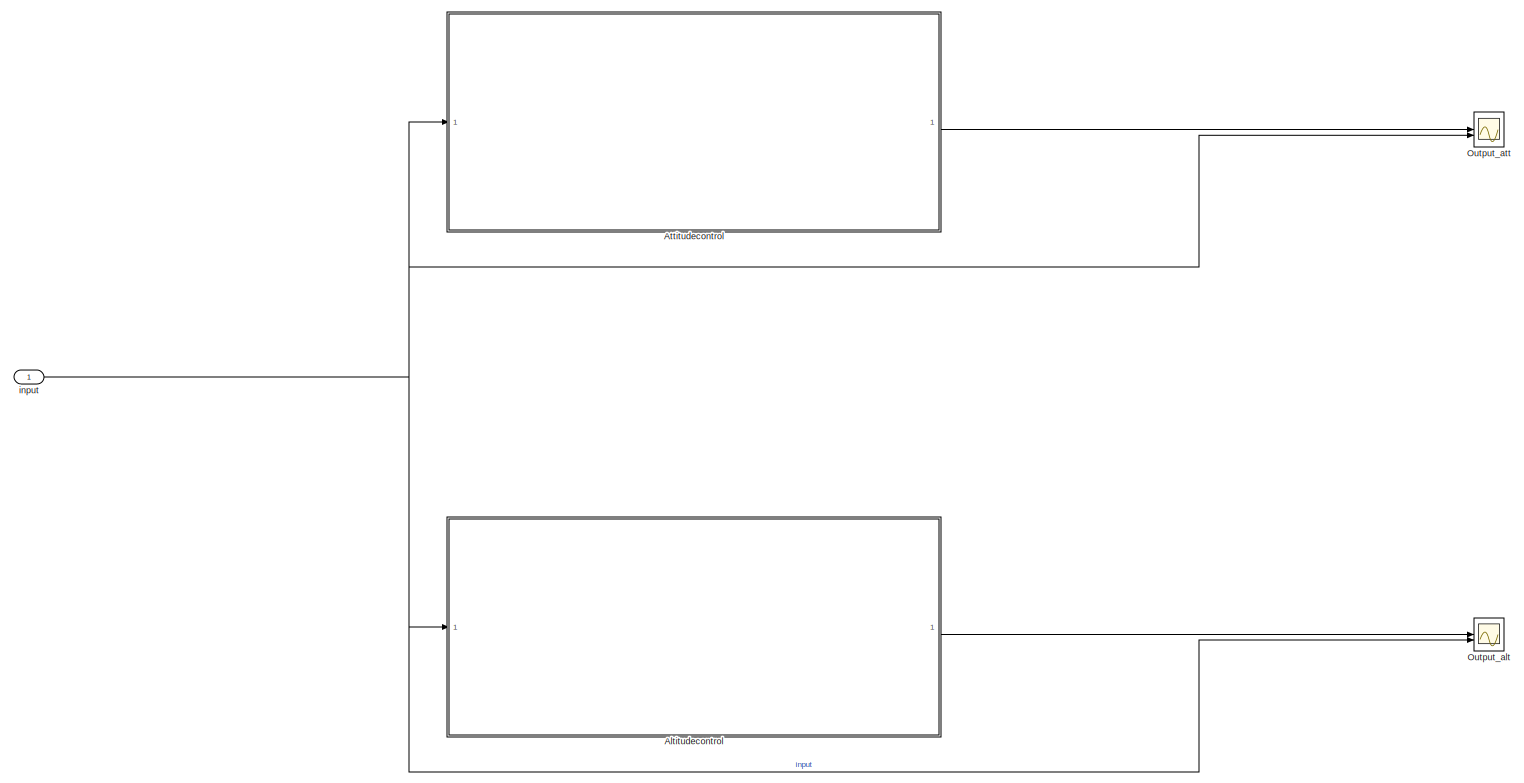
[diagram: root canvas - part 1/1, most of the canvas]
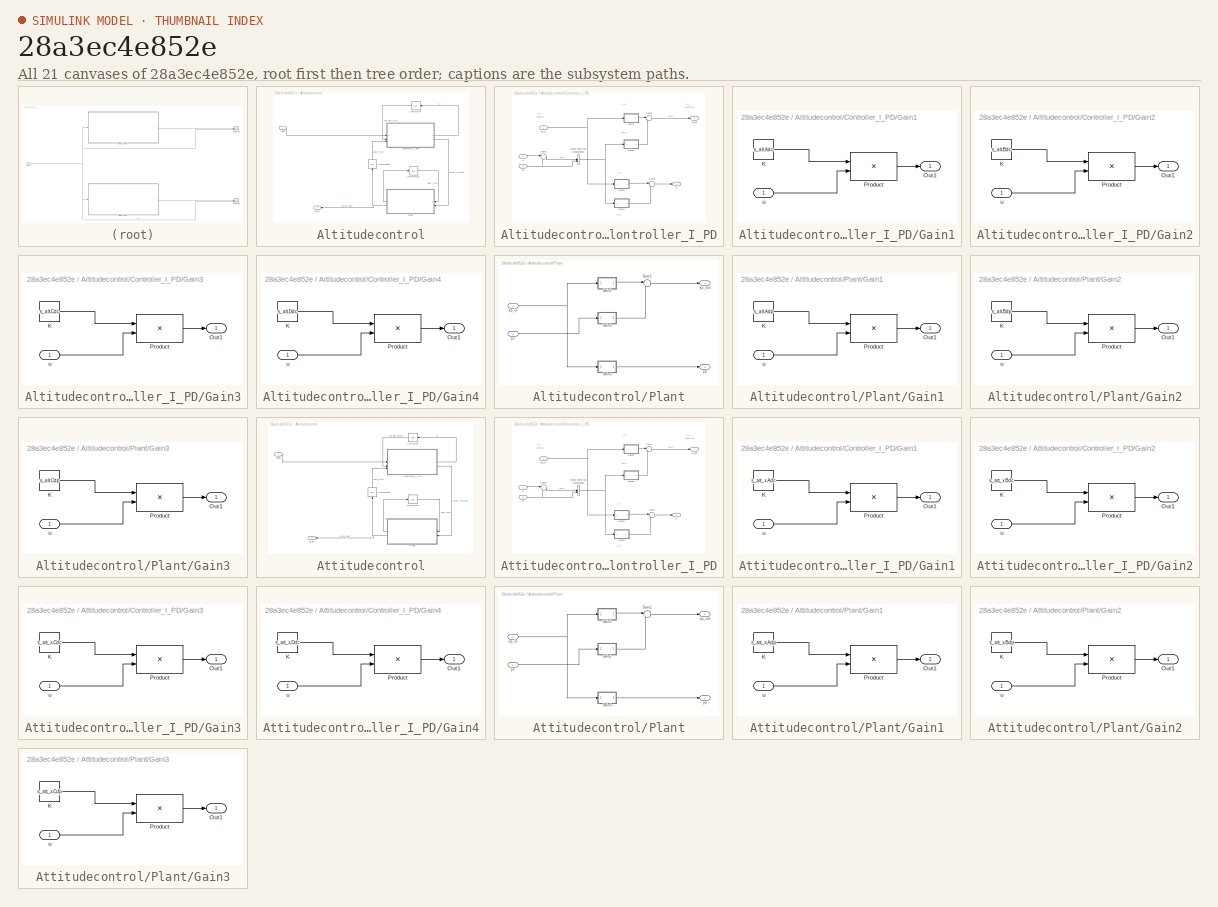
[diagram: thumbnail index - all 21 canvases of the model, root first then tree order]
MODEL slx_28a3ec4e852e
KIND model
CONFIG AbsTol = auto
CONFIG EnableMultiTasking = off
CONFIG FixedStep = 0.010000
CONFIG MaxStep = auto
CONFIG MinStep = auto
CONFIG RelTol = 1e-3
CONFIG SampleTimeConstraint = Unconstrained
CONFIG SolverName = FixedStepDiscrete
CONFIG StartTime = 0.0
CONFIG StopTime = 10.0
WORKSPACE source: mxarray member
WORKSPACE already_pp = 1
BLOCK [SubSystem] Altitudecontrol
  TreatAsAtomicUnit = on
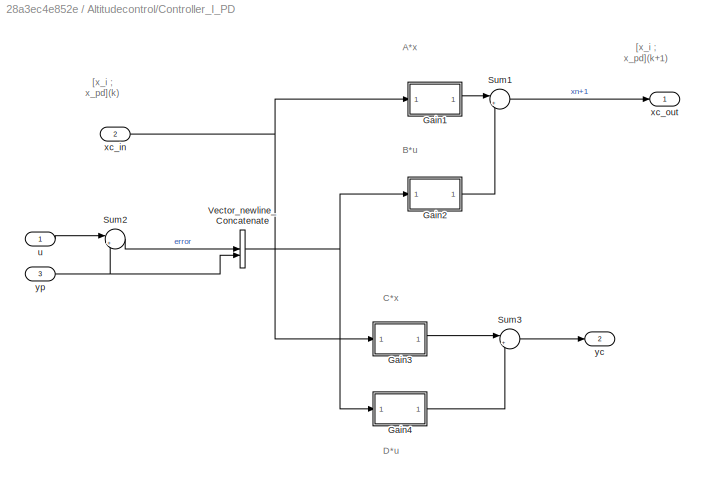
BLOCK [SubSystem] Altitudecontrol/Controller_I_PD
  TreatAsAtomicUnit = on
BLOCK [SubSystem] Altitudecontrol/Controller_I_PD/Gain1
  TreatAsAtomicUnit = on
BLOCK [Constant] Altitudecontrol/Controller_I_PD/Gain1/K
  Value = s_alt.Adc
  VectorParams1D = off
BLOCK [Outport] Altitudecontrol/Controller_I_PD/Gain1/Out1
  VectorParamsAs1DForOutWhenUnconnected = off
BLOCK [Product] Altitudecontrol/Controller_I_PD/Gain1/Product
  Multiplication = Matrix(*)
BLOCK [Inport] Altitudecontrol/Controller_I_PD/Gain1/u
  OutDataTypeStr = double
BLOCK [SubSystem] Altitudecontrol/Controller_I_PD/Gain2
  TreatAsAtomicUnit = on
BLOCK [Constant] Altitudecontrol/Controller_I_PD/Gain2/K
  Value = s_alt.Bdc
  VectorParams1D = off
BLOCK [Outport] Altitudecontrol/Controller_I_PD/Gain2/Out1
  VectorParamsAs1DForOutWhenUnconnected = off
BLOCK [Product] Altitudecontrol/Controller_I_PD/Gain2/Product
  Multiplication = Matrix(*)
BLOCK [Inport] Altitudecontrol/Controller_I_PD/Gain2/u
  OutDataTypeStr = double
BLOCK [SubSystem] Altitudecontrol/Controller_I_PD/Gain3
  TreatAsAtomicUnit = on
BLOCK [Constant] Altitudecontrol/Controller_I_PD/Gain3/K
  Value = s_alt.Cdc
  VectorParams1D = off
BLOCK [Outport] Altitudecontrol/Controller_I_PD/Gain3/Out1
  VectorParamsAs1DForOutWhenUnconnected = off
BLOCK [Product] Altitudecontrol/Controller_I_PD/Gain3/Product
  Multiplication = Matrix(*)
BLOCK [Inport] Altitudecontrol/Controller_I_PD/Gain3/u
  OutDataTypeStr = double
BLOCK [SubSystem] Altitudecontrol/Controller_I_PD/Gain4
  TreatAsAtomicUnit = on
BLOCK [Constant] Altitudecontrol/Controller_I_PD/Gain4/K
  Value = s_alt.Ddc
  VectorParams1D = off
BLOCK [Outport] Altitudecontrol/Controller_I_PD/Gain4/Out1
  VectorParamsAs1DForOutWhenUnconnected = off
BLOCK [Product] Altitudecontrol/Controller_I_PD/Gain4/Product
  Multiplication = Matrix(*)
BLOCK [Inport] Altitudecontrol/Controller_I_PD/Gain4/u
  OutDataTypeStr = double
BLOCK [Sum] Altitudecontrol/Controller_I_PD/Sum1
  Inputs = |++
BLOCK [Sum] Altitudecontrol/Controller_I_PD/Sum2
  Inputs = |+-
BLOCK [Sum] Altitudecontrol/Controller_I_PD/Sum3
  Inputs = |++
BLOCK [Concatenate] Altitudecontrol/Controller_I_PD/Vector_newline_Concatenate
BLOCK [Inport] Altitudecontrol/Controller_I_PD/u
BLOCK [Inport] Altitudecontrol/Controller_I_PD/xc_in
  Port = 2
BLOCK [Outport] Altitudecontrol/Controller_I_PD/xc_out
BLOCK [Outport] Altitudecontrol/Controller_I_PD/yc
  Port = 2
BLOCK [Inport] Altitudecontrol/Controller_I_PD/yp
  Port = 3
BLOCK [SubSystem] Altitudecontrol/Plant
  NameLocation = top
  TreatAsAtomicUnit = on
BLOCK [SubSystem] Altitudecontrol/Plant/Gain1
  TreatAsAtomicUnit = on
BLOCK [Constant] Altitudecontrol/Plant/Gain1/K
  Value = s_alt.Adp
  VectorParams1D = off
BLOCK [Outport] Altitudecontrol/Plant/Gain1/Out1
  VectorParamsAs1DForOutWhenUnconnected = off
BLOCK [Product] Altitudecontrol/Plant/Gain1/Product
  Multiplication = Matrix(*)
BLOCK [Inport] Altitudecontrol/Plant/Gain1/u
  OutDataTypeStr = double
BLOCK [SubSystem] Altitudecontrol/Plant/Gain2
  TreatAsAtomicUnit = on
BLOCK [Constant] Altitudecontrol/Plant/Gain2/K
  Value = s_alt.Bdp
  VectorParams1D = off
BLOCK [Outport] Altitudecontrol/Plant/Gain2/Out1
  VectorParamsAs1DForOutWhenUnconnected = off
BLOCK [Product] Altitudecontrol/Plant/Gain2/Product
  Multiplication = Matrix(*)
BLOCK [Inport] Altitudecontrol/Plant/Gain2/u
  OutDataTypeStr = double
BLOCK [SubSystem] Altitudecontrol/Plant/Gain3
  TreatAsAtomicUnit = on
BLOCK [Constant] Altitudecontrol/Plant/Gain3/K
  Value = s_alt.Cdp
  VectorParams1D = off
BLOCK [Outport] Altitudecontrol/Plant/Gain3/Out1
  VectorParamsAs1DForOutWhenUnconnected = off
BLOCK [Product] Altitudecontrol/Plant/Gain3/Product
  Multiplication = Matrix(*)
BLOCK [Inport] Altitudecontrol/Plant/Gain3/u
  OutDataTypeStr = double
BLOCK [Sum] Altitudecontrol/Plant/Sum1
  Inputs = |++
BLOCK [Inport] Altitudecontrol/Plant/xp_in
BLOCK [Outport] Altitudecontrol/Plant/xp_out
BLOCK [Inport] Altitudecontrol/Plant/yc
  Port = 2
BLOCK [Outport] Altitudecontrol/Plant/yp
  Port = 2
BLOCK [UnitDelay] Altitudecontrol/UnitDelay
  HasFrameUpgradeWarning = on
  NameLocation = top
  SampleTime = Ts
BLOCK [UnitDelay] Altitudecontrol/UnitDelay1
  HasFrameUpgradeWarning = on
  SampleTime = Ts
BLOCK [UnitDelay] Altitudecontrol/UnitDelay2
  HasFrameUpgradeWarning = on
  NameLocation = right
  SampleTime = Ts
BLOCK [Inport] Altitudecontrol/input
BLOCK [Outport] Altitudecontrol/yp_alt
  NameLocation = top
BLOCK [SubSystem] Attitudecontrol
  TreatAsAtomicUnit = on
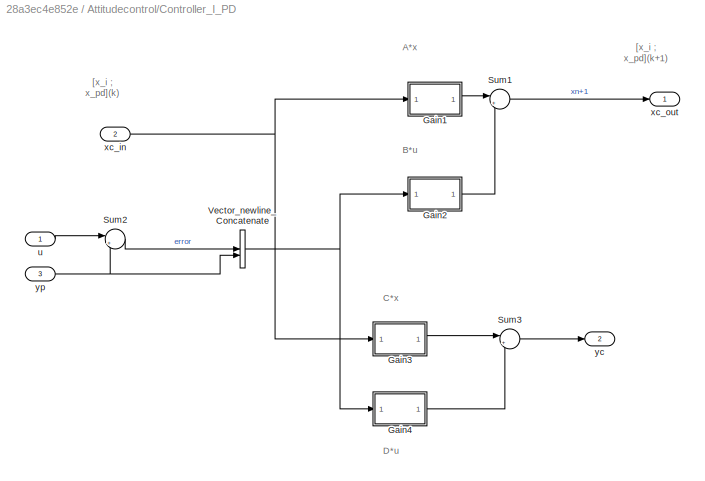
BLOCK [SubSystem] Attitudecontrol/Controller_I_PD
  TreatAsAtomicUnit = on
BLOCK [SubSystem] Attitudecontrol/Controller_I_PD/Gain1
  TreatAsAtomicUnit = on
BLOCK [Constant] Attitudecontrol/Controller_I_PD/Gain1/K
  Value = s_att_x.Adc
  VectorParams1D = off
BLOCK [Outport] Attitudecontrol/Controller_I_PD/Gain1/Out1
  VectorParamsAs1DForOutWhenUnconnected = off
BLOCK [Product] Attitudecontrol/Controller_I_PD/Gain1/Product
  Multiplication = Matrix(*)
BLOCK [Inport] Attitudecontrol/Controller_I_PD/Gain1/u
  OutDataTypeStr = double
BLOCK [SubSystem] Attitudecontrol/Controller_I_PD/Gain2
  TreatAsAtomicUnit = on
BLOCK [Constant] Attitudecontrol/Controller_I_PD/Gain2/K
  Value = s_att_x.Bdc
  VectorParams1D = off
BLOCK [Outport] Attitudecontrol/Controller_I_PD/Gain2/Out1
  VectorParamsAs1DForOutWhenUnconnected = off
BLOCK [Product] Attitudecontrol/Controller_I_PD/Gain2/Product
  Multiplication = Matrix(*)
BLOCK [Inport] Attitudecontrol/Controller_I_PD/Gain2/u
  OutDataTypeStr = double
BLOCK [SubSystem] Attitudecontrol/Controller_I_PD/Gain3
  TreatAsAtomicUnit = on
BLOCK [Constant] Attitudecontrol/Controller_I_PD/Gain3/K
  Value = s_att_x.Cdc
  VectorParams1D = off
BLOCK [Outport] Attitudecontrol/Controller_I_PD/Gain3/Out1
  VectorParamsAs1DForOutWhenUnconnected = off
BLOCK [Product] Attitudecontrol/Controller_I_PD/Gain3/Product
  Multiplication = Matrix(*)
BLOCK [Inport] Attitudecontrol/Controller_I_PD/Gain3/u
  OutDataTypeStr = double
BLOCK [SubSystem] Attitudecontrol/Controller_I_PD/Gain4
  TreatAsAtomicUnit = on
BLOCK [Constant] Attitudecontrol/Controller_I_PD/Gain4/K
  Value = s_att_x.Ddc
  VectorParams1D = off
BLOCK [Outport] Attitudecontrol/Controller_I_PD/Gain4/Out1
  VectorParamsAs1DForOutWhenUnconnected = off
BLOCK [Product] Attitudecontrol/Controller_I_PD/Gain4/Product
  Multiplication = Matrix(*)
BLOCK [Inport] Attitudecontrol/Controller_I_PD/Gain4/u
  OutDataTypeStr = double
BLOCK [Sum] Attitudecontrol/Controller_I_PD/Sum1
  Inputs = |++
BLOCK [Sum] Attitudecontrol/Controller_I_PD/Sum2
  Inputs = |+-
BLOCK [Sum] Attitudecontrol/Controller_I_PD/Sum3
  Inputs = |++
BLOCK [Concatenate] Attitudecontrol/Controller_I_PD/Vector_newline_Concatenate
BLOCK [Inport] Attitudecontrol/Controller_I_PD/u
BLOCK [Inport] Attitudecontrol/Controller_I_PD/xc_in
  Port = 2
BLOCK [Outport] Attitudecontrol/Controller_I_PD/xc_out
BLOCK [Outport] Attitudecontrol/Controller_I_PD/yc
  Port = 2
BLOCK [Inport] Attitudecontrol/Controller_I_PD/yp
  Port = 3
BLOCK [SubSystem] Attitudecontrol/Plant
  NameLocation = top
  TreatAsAtomicUnit = on
BLOCK [SubSystem] Attitudecontrol/Plant/Gain1
  TreatAsAtomicUnit = on
BLOCK [Constant] Attitudecontrol/Plant/Gain1/K
  Value = s_att_x.Adp
  VectorParams1D = off
BLOCK [Outport] Attitudecontrol/Plant/Gain1/Out1
  VectorParamsAs1DForOutWhenUnconnected = off
BLOCK [Product] Attitudecontrol/Plant/Gain1/Product
  Multiplication = Matrix(*)
BLOCK [Inport] Attitudecontrol/Plant/Gain1/u
  OutDataTypeStr = double
BLOCK [SubSystem] Attitudecontrol/Plant/Gain2
  TreatAsAtomicUnit = on
BLOCK [Constant] Attitudecontrol/Plant/Gain2/K
  Value = s_att_x.Bdp
  VectorParams1D = off
BLOCK [Outport] Attitudecontrol/Plant/Gain2/Out1
  VectorParamsAs1DForOutWhenUnconnected = off
BLOCK [Product] Attitudecontrol/Plant/Gain2/Product
  Multiplication = Matrix(*)
BLOCK [Inport] Attitudecontrol/Plant/Gain2/u
  OutDataTypeStr = double
BLOCK [SubSystem] Attitudecontrol/Plant/Gain3
  TreatAsAtomicUnit = on
BLOCK [Constant] Attitudecontrol/Plant/Gain3/K
  Value = s_att_x.Cdp
  VectorParams1D = off
BLOCK [Outport] Attitudecontrol/Plant/Gain3/Out1
  VectorParamsAs1DForOutWhenUnconnected = off
BLOCK [Product] Attitudecontrol/Plant/Gain3/Product
  Multiplication = Matrix(*)
BLOCK [Inport] Attitudecontrol/Plant/Gain3/u
  OutDataTypeStr = double
BLOCK [Sum] Attitudecontrol/Plant/Sum1
  Inputs = |++
BLOCK [Inport] Attitudecontrol/Plant/xp_in
BLOCK [Outport] Attitudecontrol/Plant/xp_out
BLOCK [Inport] Attitudecontrol/Plant/yc
  Port = 2
BLOCK [Outport] Attitudecontrol/Plant/yp
  Port = 2
BLOCK [UnitDelay] Attitudecontrol/UnitDelay
  HasFrameUpgradeWarning = on
  NameLocation = top
  SampleTime = Ts
BLOCK [UnitDelay] Attitudecontrol/UnitDelay1
  HasFrameUpgradeWarning = on
  SampleTime = Ts
BLOCK [UnitDelay] Attitudecontrol/UnitDelay2
  HasFrameUpgradeWarning = on
  NameLocation = right
  SampleTime = Ts
BLOCK [Inport] Attitudecontrol/input
BLOCK [Outport] Attitudecontrol/yp_att
  NameLocation = top
BLOCK [Scope] Output_alt
  Floating = off
  NumInputPorts = 2
  ScopeSpecificationString = Simulink.scopes.TimeScopeBlockCfg('CurrentConfiguration', extmgr.ConfigurationSet(extmgr.Configuration('Core','General UI',true),extmgr.Configuration('Core','Source UI',true),extmgr.Configuration('Sources','WiredSimulink',true,'DataLoggingVariableName','ScopeData1'),extmgr.Configuration('Visuals','Time Domain',true,'SerializedDisplays',{struct('MinYLimReal','-1.25','MaxYLimReal','1.25','YLabelReal...<+1534ch>
BLOCK [Scope] Output_att
  Floating = off
  NumInputPorts = 2
  ScopeSpecificationString = Simulink.scopes.TimeScopeBlockCfg('CurrentConfiguration', extmgr.ConfigurationSet(extmgr.Configuration('Core','General UI',true,'FigureColor',[0 0 0]),extmgr.Configuration('Core','Source UI',true),extmgr.Configuration('Sources','WiredSimulink',true),extmgr.Configuration('Visuals','Time Domain',true,'SerializedDisplays',{struct('MinYLimReal','-1.37473','MaxYLimReal','1.63526','YLabelReal','','MinYL...<+1617ch>
BLOCK [Inport] input
ANNOTATION Altitudecontrol/Controller_I_PD: A*x
ANNOTATION Altitudecontrol/Controller_I_PD: B*u
ANNOTATION Altitudecontrol/Controller_I_PD: C*x
ANNOTATION Altitudecontrol/Controller_I_PD: D*u
ANNOTATION Altitudecontrol/Controller_I_PD: [x_i ; x_pd](k)
ANNOTATION Altitudecontrol/Controller_I_PD: [x_i ; x_pd](k+1)
ANNOTATION Attitudecontrol/Controller_I_PD: A*x
ANNOTATION Attitudecontrol/Controller_I_PD: B*u
ANNOTATION Attitudecontrol/Controller_I_PD: C*x
ANNOTATION Attitudecontrol/Controller_I_PD: D*u
ANNOTATION Attitudecontrol/Controller_I_PD: [x_i ; x_pd](k)
ANNOTATION Attitudecontrol/Controller_I_PD: [x_i ; x_pd](k+1)
LINE Altitudecontrol/Controller_I_PD/Gain1/K:1 -> Altitudecontrol/Controller_I_PD/Gain1/Product:1
LINE Altitudecontrol/Controller_I_PD/Gain1/Product:1 -> Altitudecontrol/Controller_I_PD/Gain1/Out1:1
LINE Altitudecontrol/Controller_I_PD/Gain1/u:1 -> Altitudecontrol/Controller_I_PD/Gain1/Product:2
LINE Altitudecontrol/Controller_I_PD/Gain1:1 -> Altitudecontrol/Controller_I_PD/Sum1:1
LINE Altitudecontrol/Controller_I_PD/Gain2/K:1 -> Altitudecontrol/Controller_I_PD/Gain2/Product:1
LINE Altitudecontrol/Controller_I_PD/Gain2/Product:1 -> Altitudecontrol/Controller_I_PD/Gain2/Out1:1
LINE Altitudecontrol/Controller_I_PD/Gain2/u:1 -> Altitudecontrol/Controller_I_PD/Gain2/Product:2
LINE Altitudecontrol/Controller_I_PD/Gain2:1 -> Altitudecontrol/Controller_I_PD/Sum1:2
LINE Altitudecontrol/Controller_I_PD/Gain3/K:1 -> Altitudecontrol/Controller_I_PD/Gain3/Product:1
LINE Altitudecontrol/Controller_I_PD/Gain3/Product:1 -> Altitudecontrol/Controller_I_PD/Gain3/Out1:1
LINE Altitudecontrol/Controller_I_PD/Gain3/u:1 -> Altitudecontrol/Controller_I_PD/Gain3/Product:2
LINE Altitudecontrol/Controller_I_PD/Gain3:1 -> Altitudecontrol/Controller_I_PD/Sum3:1
LINE Altitudecontrol/Controller_I_PD/Gain4/K:1 -> Altitudecontrol/Controller_I_PD/Gain4/Product:1
LINE Altitudecontrol/Controller_I_PD/Gain4/Product:1 -> Altitudecontrol/Controller_I_PD/Gain4/Out1:1
LINE Altitudecontrol/Controller_I_PD/Gain4/u:1 -> Altitudecontrol/Controller_I_PD/Gain4/Product:2
LINE Altitudecontrol/Controller_I_PD/Gain4:1 -> Altitudecontrol/Controller_I_PD/Sum3:2
LINE Altitudecontrol/Controller_I_PD/Sum1:1 -> Altitudecontrol/Controller_I_PD/xc_out:1
LINE Altitudecontrol/Controller_I_PD/Sum2:1 -> Altitudecontrol/Controller_I_PD/Vector_newline_Concatenate:1
LINE Altitudecontrol/Controller_I_PD/Sum3:1 -> Altitudecontrol/Controller_I_PD/yc:1
NET Altitudecontrol/Controller_I_PD/Vector_newline_Concatenate:1 -> Altitudecontrol/Controller_I_PD/Gain2:1, Altitudecontrol/Controller_I_PD/Gain4:1
LINE Altitudecontrol/Controller_I_PD/u:1 -> Altitudecontrol/Controller_I_PD/Sum2:1
NET Altitudecontrol/Controller_I_PD/xc_in:1 -> Altitudecontrol/Controller_I_PD/Gain1:1, Altitudecontrol/Controller_I_PD/Gain3:1
NET Altitudecontrol/Controller_I_PD/yp:1 -> Altitudecontrol/Controller_I_PD/Sum2:2, Altitudecontrol/Controller_I_PD/Vector_newline_Concatenate:2
LINE Altitudecontrol/Controller_I_PD:1 -> Altitudecontrol/UnitDelay:1
LINE Altitudecontrol/Controller_I_PD:2 -> Altitudecontrol/Plant:2
LINE Altitudecontrol/Plant/Gain1/K:1 -> Altitudecontrol/Plant/Gain1/Product:1
LINE Altitudecontrol/Plant/Gain1/Product:1 -> Altitudecontrol/Plant/Gain1/Out1:1
LINE Altitudecontrol/Plant/Gain1/u:1 -> Altitudecontrol/Plant/Gain1/Product:2
LINE Altitudecontrol/Plant/Gain1:1 -> Altitudecontrol/Plant/Sum1:1
LINE Altitudecontrol/Plant/Gain2/K:1 -> Altitudecontrol/Plant/Gain2/Product:1
LINE Altitudecontrol/Plant/Gain2/Product:1 -> Altitudecontrol/Plant/Gain2/Out1:1
LINE Altitudecontrol/Plant/Gain2/u:1 -> Altitudecontrol/Plant/Gain2/Product:2
LINE Altitudecontrol/Plant/Gain2:1 -> Altitudecontrol/Plant/Sum1:2
LINE Altitudecontrol/Plant/Gain3/K:1 -> Altitudecontrol/Plant/Gain3/Product:1
LINE Altitudecontrol/Plant/Gain3/Product:1 -> Altitudecontrol/Plant/Gain3/Out1:1
LINE Altitudecontrol/Plant/Gain3/u:1 -> Altitudecontrol/Plant/Gain3/Product:2
LINE Altitudecontrol/Plant/Gain3:1 -> Altitudecontrol/Plant/yp:1
LINE Altitudecontrol/Plant/Sum1:1 -> Altitudecontrol/Plant/xp_out:1
NET Altitudecontrol/Plant/xp_in:1 -> Altitudecontrol/Plant/Gain1:1, Altitudecontrol/Plant/Gain3:1
LINE Altitudecontrol/Plant/yc:1 -> Altitudecontrol/Plant/Gain2:1
LINE Altitudecontrol/Plant:1 -> Altitudecontrol/UnitDelay1:1
NET Altitudecontrol/Plant:2 -> Altitudecontrol/UnitDelay2:1, Altitudecontrol/yp_alt:1
LINE Altitudecontrol/UnitDelay1:1 -> Altitudecontrol/Plant:1
LINE Altitudecontrol/UnitDelay2:1 -> Altitudecontrol/Controller_I_PD:3
LINE Altitudecontrol/UnitDelay:1 -> Altitudecontrol/Controller_I_PD:2
LINE Altitudecontrol/input:1 -> Altitudecontrol/Controller_I_PD:1
LINE Altitudecontrol:1 -> Output_alt:1
LINE Attitudecontrol/Controller_I_PD/Gain1/K:1 -> Attitudecontrol/Controller_I_PD/Gain1/Product:1
LINE Attitudecontrol/Controller_I_PD/Gain1/Product:1 -> Attitudecontrol/Controller_I_PD/Gain1/Out1:1
LINE Attitudecontrol/Controller_I_PD/Gain1/u:1 -> Attitudecontrol/Controller_I_PD/Gain1/Product:2
LINE Attitudecontrol/Controller_I_PD/Gain1:1 -> Attitudecontrol/Controller_I_PD/Sum1:1
LINE Attitudecontrol/Controller_I_PD/Gain2/K:1 -> Attitudecontrol/Controller_I_PD/Gain2/Product:1
LINE Attitudecontrol/Controller_I_PD/Gain2/Product:1 -> Attitudecontrol/Controller_I_PD/Gain2/Out1:1
LINE Attitudecontrol/Controller_I_PD/Gain2/u:1 -> Attitudecontrol/Controller_I_PD/Gain2/Product:2
LINE Attitudecontrol/Controller_I_PD/Gain2:1 -> Attitudecontrol/Controller_I_PD/Sum1:2
LINE Attitudecontrol/Controller_I_PD/Gain3/K:1 -> Attitudecontrol/Controller_I_PD/Gain3/Product:1
LINE Attitudecontrol/Controller_I_PD/Gain3/Product:1 -> Attitudecontrol/Controller_I_PD/Gain3/Out1:1
LINE Attitudecontrol/Controller_I_PD/Gain3/u:1 -> Attitudecontrol/Controller_I_PD/Gain3/Product:2
LINE Attitudecontrol/Controller_I_PD/Gain3:1 -> Attitudecontrol/Controller_I_PD/Sum3:1
LINE Attitudecontrol/Controller_I_PD/Gain4/K:1 -> Attitudecontrol/Controller_I_PD/Gain4/Product:1
LINE Attitudecontrol/Controller_I_PD/Gain4/Product:1 -> Attitudecontrol/Controller_I_PD/Gain4/Out1:1
LINE Attitudecontrol/Controller_I_PD/Gain4/u:1 -> Attitudecontrol/Controller_I_PD/Gain4/Product:2
LINE Attitudecontrol/Controller_I_PD/Gain4:1 -> Attitudecontrol/Controller_I_PD/Sum3:2
LINE Attitudecontrol/Controller_I_PD/Sum1:1 -> Attitudecontrol/Controller_I_PD/xc_out:1
LINE Attitudecontrol/Controller_I_PD/Sum2:1 -> Attitudecontrol/Controller_I_PD/Vector_newline_Concatenate:1
LINE Attitudecontrol/Controller_I_PD/Sum3:1 -> Attitudecontrol/Controller_I_PD/yc:1
NET Attitudecontrol/Controller_I_PD/Vector_newline_Concatenate:1 -> Attitudecontrol/Controller_I_PD/Gain2:1, Attitudecontrol/Controller_I_PD/Gain4:1
LINE Attitudecontrol/Controller_I_PD/u:1 -> Attitudecontrol/Controller_I_PD/Sum2:1
NET Attitudecontrol/Controller_I_PD/xc_in:1 -> Attitudecontrol/Controller_I_PD/Gain1:1, Attitudecontrol/Controller_I_PD/Gain3:1
NET Attitudecontrol/Controller_I_PD/yp:1 -> Attitudecontrol/Controller_I_PD/Sum2:2, Attitudecontrol/Controller_I_PD/Vector_newline_Concatenate:2
LINE Attitudecontrol/Controller_I_PD:1 -> Attitudecontrol/UnitDelay:1
LINE Attitudecontrol/Controller_I_PD:2 -> Attitudecontrol/Plant:2
LINE Attitudecontrol/Plant/Gain1/K:1 -> Attitudecontrol/Plant/Gain1/Product:1
LINE Attitudecontrol/Plant/Gain1/Product:1 -> Attitudecontrol/Plant/Gain1/Out1:1
LINE Attitudecontrol/Plant/Gain1/u:1 -> Attitudecontrol/Plant/Gain1/Product:2
LINE Attitudecontrol/Plant/Gain1:1 -> Attitudecontrol/Plant/Sum1:1
LINE Attitudecontrol/Plant/Gain2/K:1 -> Attitudecontrol/Plant/Gain2/Product:1
LINE Attitudecontrol/Plant/Gain2/Product:1 -> Attitudecontrol/Plant/Gain2/Out1:1
LINE Attitudecontrol/Plant/Gain2/u:1 -> Attitudecontrol/Plant/Gain2/Product:2
LINE Attitudecontrol/Plant/Gain2:1 -> Attitudecontrol/Plant/Sum1:2
LINE Attitudecontrol/Plant/Gain3/K:1 -> Attitudecontrol/Plant/Gain3/Product:1
LINE Attitudecontrol/Plant/Gain3/Product:1 -> Attitudecontrol/Plant/Gain3/Out1:1
LINE Attitudecontrol/Plant/Gain3/u:1 -> Attitudecontrol/Plant/Gain3/Product:2
LINE Attitudecontrol/Plant/Gain3:1 -> Attitudecontrol/Plant/yp:1
LINE Attitudecontrol/Plant/Sum1:1 -> Attitudecontrol/Plant/xp_out:1
NET Attitudecontrol/Plant/xp_in:1 -> Attitudecontrol/Plant/Gain1:1, Attitudecontrol/Plant/Gain3:1
LINE Attitudecontrol/Plant/yc:1 -> Attitudecontrol/Plant/Gain2:1
LINE Attitudecontrol/Plant:1 -> Attitudecontrol/UnitDelay1:1
NET Attitudecontrol/Plant:2 -> Attitudecontrol/UnitDelay2:1, Attitudecontrol/yp_att:1
LINE Attitudecontrol/UnitDelay1:1 -> Attitudecontrol/Plant:1
LINE Attitudecontrol/UnitDelay2:1 -> Attitudecontrol/Controller_I_PD:3
LINE Attitudecontrol/UnitDelay:1 -> Attitudecontrol/Controller_I_PD:2
LINE Attitudecontrol/input:1 -> Attitudecontrol/Controller_I_PD:1
LINE Attitudecontrol:1 -> Output_att:1
NET input:1 -> Altitudecontrol:1, Attitudecontrol:1, Output_alt:2, Output_att:2
note: NET lines group one-source signal fan-out (src -> all destinations, sorted); 1:1 wires keep LINE
